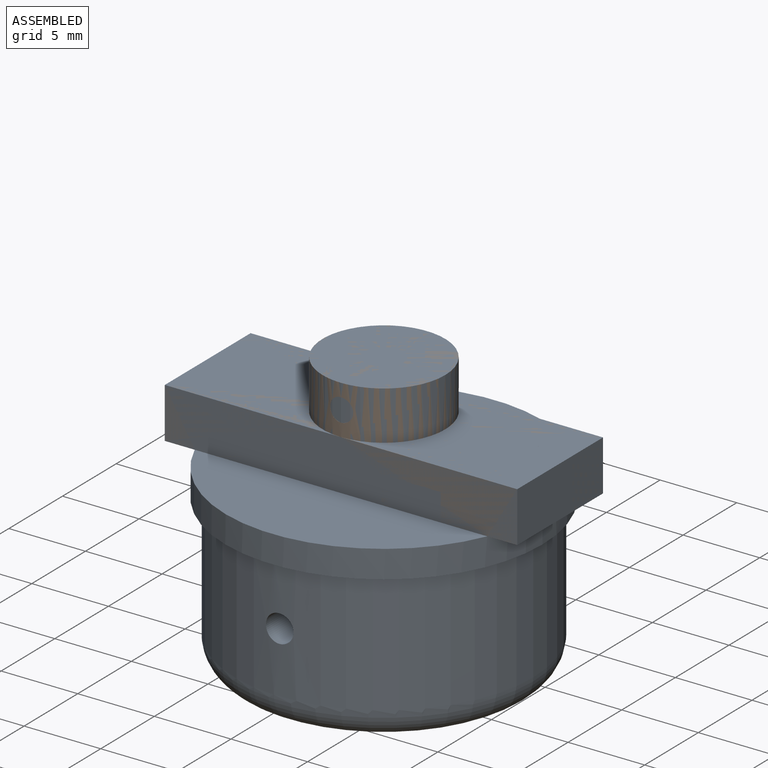
[diagram: assembled view]
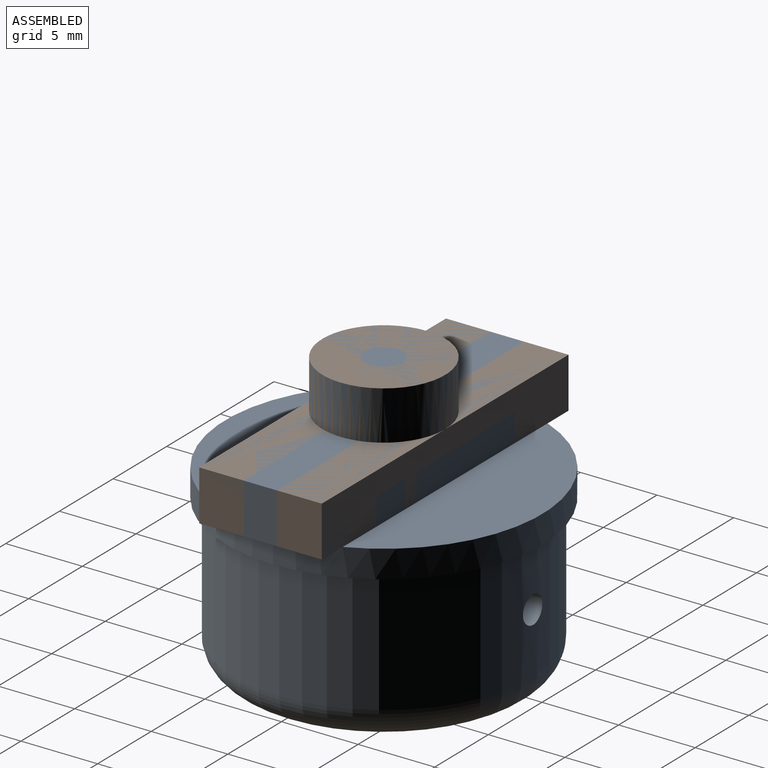
[diagram: assembled view, second angle]
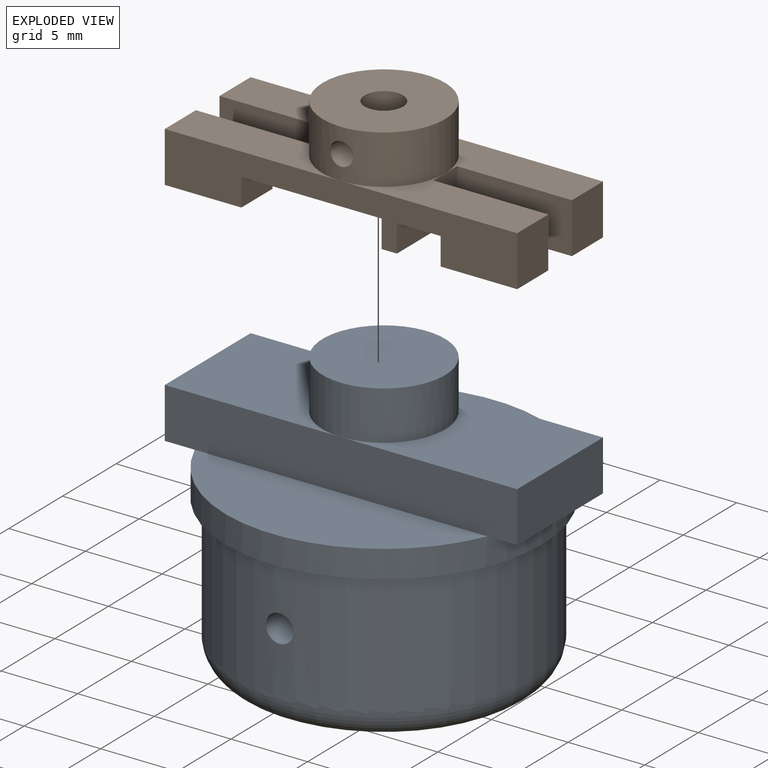
[diagram: exploded view]
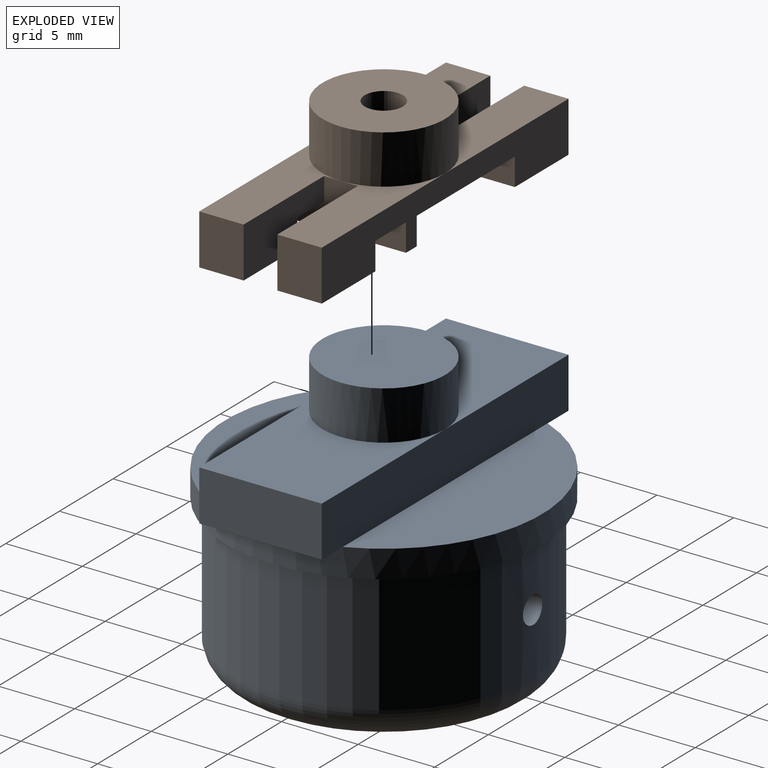
[diagram: exploded view, second angle]
ASSEMBLY  parts=2 mates=2
PART A: 21 faces, bbox 23x21.1x18.3 mm
  f0: plane 11.5x8mm, normal (0,0,1), area 66.9mm2, adj f15,f16,f17,f20
  f1: plane 19.09x6.35mm, normal (0,0,1), area 87.6mm2, adj f10,f17
  f2: cylinder r=4.5mm len=10mm, axis (0,0,-1), area 277.6mm2, adj f4,f6,f7,f11
  f3: cylinder r=9.75mm len=19.5mm, axis (0,0,-1), area 485mm2, adj f5,f6,f7,f8
  f4: plane 15.5x15.5mm, normal (0,0,-1), area 125.1mm2, adj f2,f5
  f5: torus R=7.75mm, axis (0,0,1), area 178.1mm2, adj f3,f4
  f6: cylinder r=0.9mm len=5.34mm, axis (0,-1,0), area 29.8mm2, adj f2,f3
  f7: cylinder r=0.9mm len=5.34mm, axis (0,-1,0), area 29.8mm2, adj f2,f3
  f8: plane 20.7x20.7mm, normal (0,0,-1), area 37.9mm2, adj f3,f10
  f9: plane 19.09x6.35mm, normal (0,0,1), area 87.6mm2, adj f10,f16
  f10: cylinder r=10.35mm len=20.7mm, axis (0,0,-1), area 117.1mm2, adj f1,f8,f9,f12,f13
  f11: plane 9x9mm, normal (0,0,-1), area 63.6mm2, adj f2
  f12: plane 8x1.95mm, normal (0,0,-1), area 11.3mm2, adj f10,f15,f16,f17
  f13: plane 8x1.95mm, normal (0,0,-1), area 11.3mm2, adj f10,f16,f17,f18
  f14: plane 11.5x8mm, normal (0,0,1), area 66.9mm2, adj f16,f17,f18,f20
  f15: plane 8x3.3mm, normal (-1,0,0), area 26.4mm2, adj f0,f12,f16,f17
  f16: plane 23x3.3mm, normal (0,-1,0), area 75.9mm2, adj f0,f9,f12,f13,f14,f15,f18
  f17: plane 23x3.3mm, normal (0,1,0), area 75.9mm2, adj f0,f1,f12,f13,f14,f15,f18
  f18: plane 8x3.3mm, normal (1,0,0), area 26.4mm2, adj f13,f14,f16,f17
  f19: plane 8x8mm, normal (0,0,1), area 50.3mm2, adj f20
  f20: cylinder r=4mm len=8mm, axis (0,0,-1), area 80.4mm2, adj f0,f14,f19
PART B: 33 faces, bbox 23x8x6.5 mm
  f0: plane 11.5x4mm, normal (0,0,1), area 25.2mm2, adj f4,f13,f14,f15,f29
  f1: plane 11.5x4mm, normal (0,0,1), area 25.2mm2, adj f4,f5,f6,f7,f29
  f2: plane 11.5x4mm, normal (0,0,1), area 25.2mm2, adj f7,f8,f9,f10,f29
  f3: plane 9.15x8mm, normal (0,0,-1), area 62.8mm2, adj f4,f6,f7,f8,f10,f18,f21,f23
  f4: plane 23x3.3mm, normal (0,1,0), area 54.3mm2, adj f0,f1,f3,f5,f15,f17,f18,f19
  f5: plane 3.3x2.9mm, normal (-1,0,0), area 9.6mm2, adj f1,f4,f6,f22
  f6: plane 7.5x3.3mm, normal (0,-1,0), area 20.2mm2, adj f1,f3,f5,f7,f21,f22
  f7: plane 2.2x1.5mm, normal (-1,0,0), area 3.3mm2, adj f1,f2,f3,f6,f8
  f8: plane 7.5x3.3mm, normal (0,1,0), area 20.2mm2, adj f2,f3,f7,f9,f23,f24
  f9: plane 3.3x2.9mm, normal (-1,0,0), area 9.6mm2, adj f2,f8,f10,f24
  f10: plane 23x3.3mm, normal (0,-1,0), area 54.3mm2, adj f2,f3,f9,f11,f16,f17,f18,f19
  f11: plane 3.3x2.9mm, normal (1,0,0), area 9.6mm2, adj f10,f12,f16,f28
  f12: plane 7.5x3.3mm, normal (0,1,0), area 20.2mm2, adj f11,f13,f16,f17,f27,f28
  f13: plane 2.2x1.5mm, normal (1,0,0), area 3.3mm2, adj f0,f12,f14,f16,f17
  f14: plane 7.5x3.3mm, normal (0,-1,0), area 20.2mm2, adj f0,f13,f15,f17,f25,f26
  f15: plane 3.3x2.9mm, normal (1,0,0), area 9.6mm2, adj f0,f4,f14,f26
  f16: plane 11.5x4mm, normal (0,0,1), area 25.2mm2, adj f10,f11,f12,f13,f29
  f17: plane 8x2.85mm, normal (0,0,-1), area 17.3mm2, adj f4,f10,f12,f13,f14,f19,f25,f27
  f18: plane 8x1.8mm, normal (-1,0,0), area 14.4mm2, adj f3,f4,f10,f20
  f19: plane 8x1.8mm, normal (1,0,0), area 14.4mm2, adj f4,f10,f17,f20
  f20: plane 8x1mm, normal (0,0,-1), area 8mm2, adj f4,f10,f18,f19
  f21: plane 2.9x1.8mm, normal (1,0,0), area 5.2mm2, adj f3,f4,f6,f22
  f22: plane 5x2.9mm, normal (0,0,-1), area 14.5mm2, adj f4,f5,f6,f21
  f23: plane 2.9x1.8mm, normal (1,0,0), area 5.2mm2, adj f3,f8,f10,f24
  f24: plane 5x2.9mm, normal (0,0,-1), area 14.5mm2, adj f8,f9,f10,f23
  f25: plane 2.9x1.8mm, normal (-1,0,0), area 5.2mm2, adj f4,f14,f17,f26
  f26: plane 5x2.9mm, normal (0,0,-1), area 14.5mm2, adj f4,f14,f15,f25
  f27: plane 2.9x1.8mm, normal (-1,0,0), area 5.2mm2, adj f10,f12,f17,f28
  f28: plane 5x2.9mm, normal (0,0,-1), area 14.5mm2, adj f10,f11,f12,f27
  f29: cylinder r=4mm len=8mm, axis (0,0,-1), area 78.6mm2, adj f0,f1,f2,f16,f30,f32
  f30: plane 8x8mm, normal (0,0,1), area 45.4mm2, adj f29,f31
  f31: cylinder r=1.25mm len=4.7mm, axis (0,0,1), area 35.1mm2, adj f3,f30,f32
  f32: cylinder r=0.75mm len=3mm, axis (0,-1,0), area 13.4mm2, adj f29,f31
PLACE A t=(-2.85,1.19,-1.65)mm
PLACE B t=(-2.85,1.19,11.95)mm
MATE planar B.f26 <-> A.f10  axis (0,0,-1) through (6.15,3.74,10.15)mm
MATE cylindrical B.f31 <-> A.f2  axis (0,0,1) through (-2.85,1.19,14.3)mm
